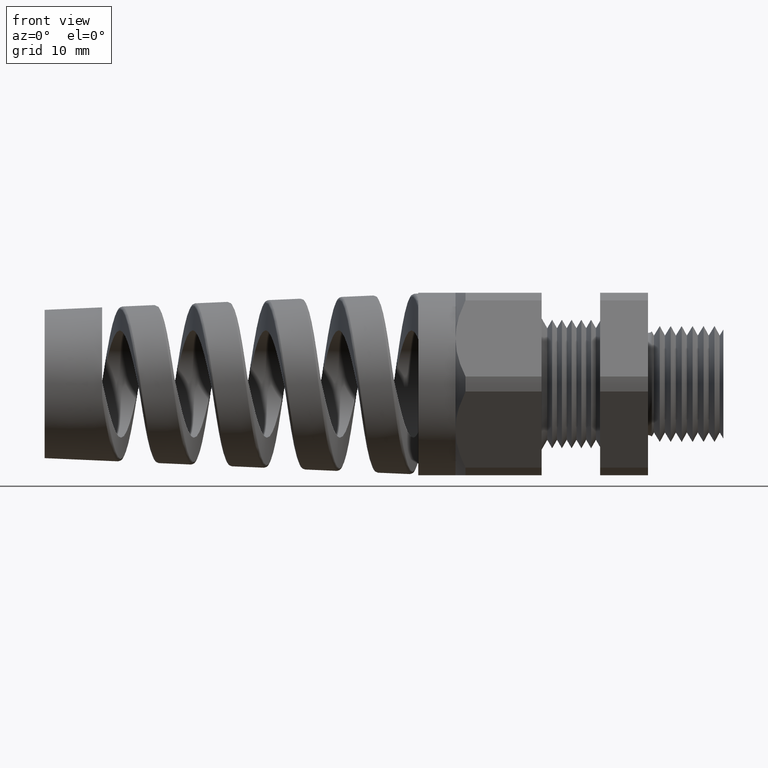
[diagram: clean part render]
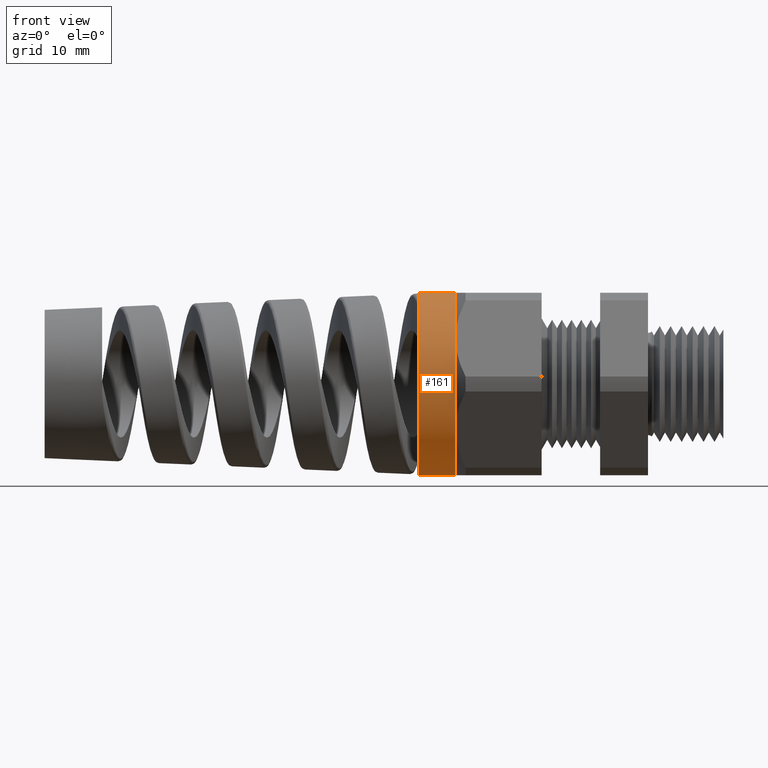
[diagram: same view with one face highlighted and labeled with its STEP entity id]
A machine part, front view. The second image highlights one B-rep face of the part: STEP entity #161.
In plain terms, the highlighted cylindrical surface (partial cylindrical patch) has radius 9.525 mm, axis along (1, 0, 0).
Its self-contained STEP definition (entity closure, byte-faithful):
#72 = VERTEX_POINT ( 'NONE', #792 ) ;
#80 = VERTEX_POINT ( 'NONE', #771 ) ;
#100 = ORIENTED_EDGE ( 'NONE', *, *, #101, .F. ) ;
#101 = EDGE_CURVE ( 'NONE', #80, #72, #802, .T. ) ;
#127 = EDGE_CURVE ( 'NONE', #7445, #7440, #916, .T. ) ;
#137 = ORIENTED_EDGE ( 'NONE', *, *, #138, .F. ) ;
#138 = EDGE_CURVE ( 'NONE', #7419, #80, #893, .T. ) ;
#158 = ORIENTED_EDGE ( 'NONE', *, *, #7312, .T. ) ;
#159 = ORIENTED_EDGE ( 'NONE', *, *, #160, .F. ) ;
#160 = EDGE_CURVE ( 'NONE', #72, #7323, #964, .T. ) ;
#161 = ADVANCED_FACE ( 'NONE', ( #959 ), #957, .T. ) ;
#198 = ORIENTED_EDGE ( 'NONE', *, *, #7455, .F. ) ;
#201 = EDGE_LOOP ( 'NONE', ( #198, #203, #158, #159, #100, #137 ) ) ;
#203 = ORIENTED_EDGE ( 'NONE', *, *, #127, .F. ) ;
#771 = CARTESIAN_POINT ( 'NONE',  ( -1.101259842519685100, -0.3247595264191647200, 0.1875000000000000300 ) ) ;
#792 = CARTESIAN_POINT ( 'NONE',  ( -1.101259842519685100, -0.3247595264191647200, -0.1875000000000002500 ) ) ;
#796 = CARTESIAN_POINT ( 'NONE',  ( -1.101259842519685100, 0.0000000000000000000, 0.0000000000000000000 ) ) ;
#797 = AXIS2_PLACEMENT_3D ( 'NONE', #796, #853, #852 ) ;
#802 = CIRCLE ( 'NONE', #797, 0.3750000000000001100 ) ;
#852 = DIRECTION ( 'NONE',  ( 0.0000000000000000000, 0.0000000000000000000, -1.000000000000000000 ) ) ;
#853 = DIRECTION ( 'NONE',  ( 1.000000000000000000, 0.0000000000000000000, 0.0000000000000000000 ) ) ;
#892 = AXIS2_PLACEMENT_3D ( 'NONE', #898, #956, #955 ) ;
#893 = CIRCLE ( 'NONE', #892, 0.3750000000000001100 ) ;
#898 = CARTESIAN_POINT ( 'NONE',  ( -1.101259842519685100, 0.0000000000000000000, 0.0000000000000000000 ) ) ;
#912 = DIRECTION ( 'NONE',  ( 0.0000000000000000000, 0.0000000000000000000, 1.000000000000000000 ) ) ;
#913 = DIRECTION ( 'NONE',  ( -1.000000000000000000, 0.0000000000000000000, 0.0000000000000000000 ) ) ;
#914 = CARTESIAN_POINT ( 'NONE',  ( -1.254136284673775400, 0.0000000000000000000, 0.0000000000000000000 ) ) ;
#915 = AXIS2_PLACEMENT_3D ( 'NONE', #914, #913, #912 ) ;
#916 = CIRCLE ( 'NONE', #915, 0.3749999999999999400 ) ;
#955 = DIRECTION ( 'NONE',  ( 0.0000000000000000000, 0.0000000000000000000, -1.000000000000000000 ) ) ;
#956 = DIRECTION ( 'NONE',  ( 1.000000000000000000, 0.0000000000000000000, 0.0000000000000000000 ) ) ;
#957 = CYLINDRICAL_SURFACE ( 'NONE', #958, 0.3750000000000001100 ) ;
#958 = AXIS2_PLACEMENT_3D ( 'NONE', #1020, #1019, #1018 ) ;
#959 = FACE_OUTER_BOUND ( 'NONE', #201, .T. ) ;
#960 = DIRECTION ( 'NONE',  ( 0.0000000000000000000, 0.0000000000000000000, -1.000000000000000000 ) ) ;
#961 = DIRECTION ( 'NONE',  ( 1.000000000000000000, 0.0000000000000000000, 0.0000000000000000000 ) ) ;
#962 = CARTESIAN_POINT ( 'NONE',  ( -1.101259842519685100, 0.0000000000000000000, 0.0000000000000000000 ) ) ;
#963 = AXIS2_PLACEMENT_3D ( 'NONE', #962, #961, #960 ) ;
#964 = CIRCLE ( 'NONE', #963, 0.3750000000000001100 ) ;
#1018 = DIRECTION ( 'NONE',  ( 0.0000000000000000000, 0.0000000000000000000, -1.000000000000000000 ) ) ;
#1019 = DIRECTION ( 'NONE',  ( 1.000000000000000000, 0.0000000000000000000, 0.0000000000000000000 ) ) ;
#1020 = CARTESIAN_POINT ( 'NONE',  ( 0.0000000000000000000, 0.0000000000000000000, 0.0000000000000000000 ) ) ;
#5082 = DIRECTION ( 'NONE',  ( 1.000000000000000000, 0.0000000000000000000, 0.0000000000000000000 ) ) ;
#5083 = VECTOR ( 'NONE', #5082, 39.37007874015748100 ) ;
#5084 = CARTESIAN_POINT ( 'NONE',  ( 0.0000000000000000000, 0.0000000000000000000, -0.3750000000000001100 ) ) ;
#5088 = LINE ( 'NONE', #5084, #5083 ) ;
#5101 = CARTESIAN_POINT ( 'NONE',  ( -1.101259842519685100, 0.0000000000000000000, -0.3750000000000002200 ) ) ;
#5145 = CARTESIAN_POINT ( 'NONE',  ( -1.101259842519685100, 0.0000000000000000000, 0.3749999999999999400 ) ) ;
#5203 = DIRECTION ( 'NONE',  ( 1.000000000000000000, 0.0000000000000000000, 0.0000000000000000000 ) ) ;
#5204 = VECTOR ( 'NONE', #5203, 39.37007874015748100 ) ;
#5205 = CARTESIAN_POINT ( 'NONE',  ( 0.0000000000000000000, 4.592425496802576100E-017, 0.3750000000000001100 ) ) ;
#5206 = LINE ( 'NONE', #5205, #5204 ) ;
#5207 = CARTESIAN_POINT ( 'NONE',  ( -1.254136284673775400, 0.0000000000000000000, -0.3749999999999999400 ) ) ;
#5208 = CARTESIAN_POINT ( 'NONE',  ( -1.254136284673775400, 4.592425496802575500E-017, 0.3749999999999999400 ) ) ;
#7312 = EDGE_CURVE ( 'NONE', #7445, #7323, #5088, .T. ) ;
#7323 = VERTEX_POINT ( 'NONE', #5101 ) ;
#7419 = VERTEX_POINT ( 'NONE', #5145 ) ;
#7440 = VERTEX_POINT ( 'NONE', #5208 ) ;
#7445 = VERTEX_POINT ( 'NONE', #5207 ) ;
#7455 = EDGE_CURVE ( 'NONE', #7440, #7419, #5206, .T. ) ;